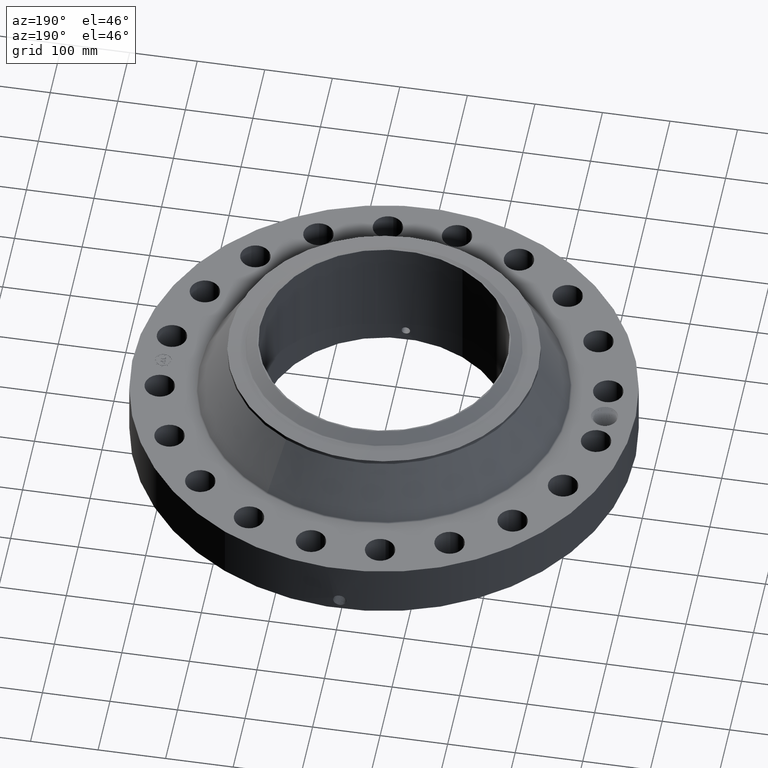
[diagram: clean part render]
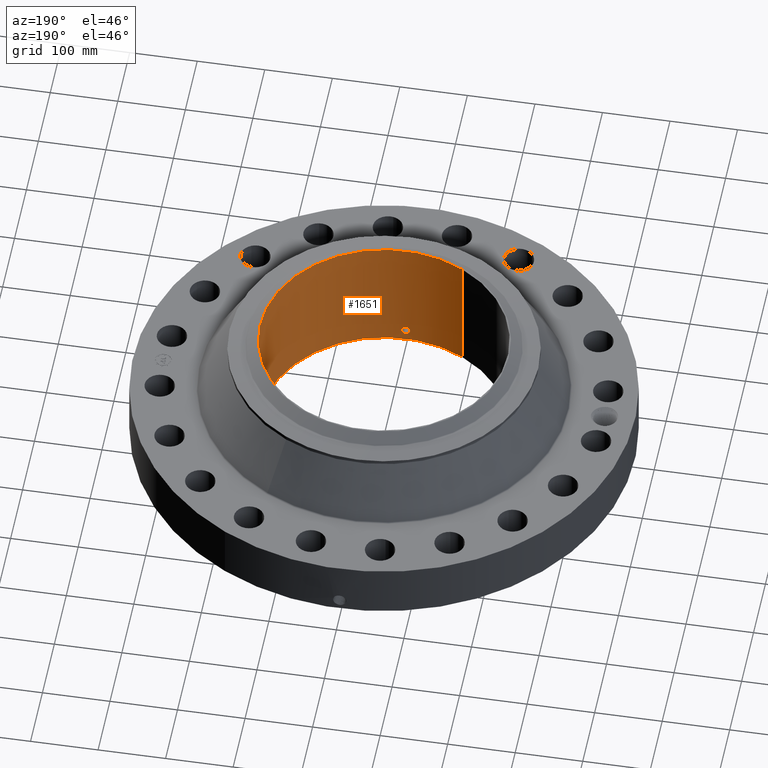
[diagram: same view with one face highlighted and labeled with its STEP entity id]
A machine part, auxiliary view. The second image highlights one B-rep face of the part: STEP entity #1651.
In plain terms, the highlighted cylindrical surface (partial cylindrical patch) has radius 183.363 mm, axis along (0, 0, -1).
Its self-contained STEP definition (entity closure, byte-faithful):
#254=AXIS2_PLACEMENT_3D('Circle Axis2P3D',#252,#253,$) ;
#1582=AXIS2_PLACEMENT_3D('Cylinder Axis2P3D',#1579,#1580,#1581) ;
#1586=AXIS2_PLACEMENT_3D('Circle Axis2P3D',#1584,#1585,$) ;
#252=CARTESIAN_POINT('Axis2P3D Location',(0.,0.,0.250000000001)) ;
#256=CARTESIAN_POINT('Vertex',(3.4609729632,6.33526851431,0.250000000001)) ;
#258=CARTESIAN_POINT('Vertex',(-3.4609729632,-6.33526851431,0.250000000001)) ;
#1579=CARTESIAN_POINT('Axis2P3D Location',(0.,0.,3.87500000002)) ;
#1584=CARTESIAN_POINT('Axis2P3D Location',(0.,0.,7.50000000003)) ;
#1588=CARTESIAN_POINT('Vertex',(3.4609729632,6.33526851431,7.50000000003)) ;
#1590=CARTESIAN_POINT('Vertex',(-3.4609729632,-6.33526851431,7.50000000003)) ;
#1593=CARTESIAN_POINT('Line Origine',(3.4609729632,6.33526851431,3.87500000002)) ;
#1598=CARTESIAN_POINT('Line Origine',(-3.4609729632,-6.33526851431,3.87500000002)) ;
#1610=CARTESIAN_POINT('Control Point',(0.219395640473,-7.21566535763,0.820143615352)) ;
#1611=CARTESIAN_POINT('Control Point',(0.194443477235,-7.21642403969,0.774468986914)) ;
#1612=CARTESIAN_POINT('Control Point',(0.157607221232,-7.21743610595,0.735290962745)) ;
#1613=CARTESIAN_POINT('Control Point',(0.111113039961,-7.21842029589,0.706759020171)) ;
#1614=CARTESIAN_POINT('Control Point',(0.0336798237529,-7.2192033861,0.684118356673)) ;
#1615=CARTESIAN_POINT('Control Point',(-0.0446639367655,-7.21893285786,0.691942649391)) ;
#1616=CARTESIAN_POINT('Control Point',(-0.0702916783756,-7.21872283908,0.697953989176)) ;
#1617=CARTESIAN_POINT('Control Point',(-0.143945309823,-7.2177946796,0.725781435934)) ;
#1618=CARTESIAN_POINT('Control Point',(-0.203231231607,-7.21627949124,0.780487792198)) ;
#1619=CARTESIAN_POINT('Control Point',(-0.232199349652,-7.21528548081,0.826721001487)) ;
#1620=CARTESIAN_POINT('Control Point',(-0.255838754623,-7.21446805381,0.904870059907)) ;
#1621=CARTESIAN_POINT('Control Point',(-0.248285892278,-7.2147290081,0.984240488738)) ;
#1622=CARTESIAN_POINT('Control Point',(-0.242052041755,-7.21494752736,1.01080796279)) ;
#1623=CARTESIAN_POINT('Control Point',(-0.23231738769,-7.21527246594,1.03620328503)) ;
#1624=CARTESIAN_POINT('Control Point',(-0.219395640473,-7.21566535763,1.05985638466)) ;
#1625=CARTESIAN_POINT('Vertex',(0.219395640473,-7.21566535763,0.820143615352)) ;
#1627=CARTESIAN_POINT('Vertex',(-0.219395640473,-7.21566535763,1.05985638466)) ;
#1631=CARTESIAN_POINT('Control Point',(-0.219395640473,-7.21566535763,1.05985638466)) ;
#1632=CARTESIAN_POINT('Control Point',(-0.194443477235,-7.21642403969,1.10553101309)) ;
#1633=CARTESIAN_POINT('Control Point',(-0.157607221233,-7.21743610595,1.14470903726)) ;
#1634=CARTESIAN_POINT('Control Point',(-0.111113039962,-7.21842029589,1.17324097984)) ;
#1635=CARTESIAN_POINT('Control Point',(-0.0336798237584,-7.2192033861,1.19588164333)) ;
#1636=CARTESIAN_POINT('Control Point',(0.0446639367554,-7.21893285786,1.18805735062)) ;
#1637=CARTESIAN_POINT('Control Point',(0.0702916783794,-7.21872283908,1.18204601083)) ;
#1638=CARTESIAN_POINT('Control Point',(0.143945309847,-7.2177946796,1.15421856406)) ;
#1639=CARTESIAN_POINT('Control Point',(0.203231231645,-7.21627949124,1.09951220778)) ;
#1640=CARTESIAN_POINT('Control Point',(0.232199349635,-7.21528548081,1.05327899857)) ;
#1641=CARTESIAN_POINT('Control Point',(0.255838754635,-7.21446805381,0.975129940099)) ;
#1642=CARTESIAN_POINT('Control Point',(0.248285892273,-7.2147290081,0.895759511211)) ;
#1643=CARTESIAN_POINT('Control Point',(0.242052041778,-7.21494752736,0.869192037272)) ;
#1644=CARTESIAN_POINT('Control Point',(0.232317387705,-7.21527246594,0.843796715002)) ;
#1645=CARTESIAN_POINT('Control Point',(0.219395640473,-7.21566535763,0.820143615352)) ;
#253=DIRECTION('Axis2P3D Direction',(0.,0.,-0.0393700787402)) ;
#1580=DIRECTION('Axis2P3D Direction',(0.,0.,-0.0393700787402)) ;
#1581=DIRECTION('Axis2P3D XDirection',(-0.0188750212049,-0.0345504945626,0.)) ;
#1585=DIRECTION('Axis2P3D Direction',(0.,0.,-0.0393700787402)) ;
#1594=DIRECTION('Vector Direction',(0.,0.,-0.0393700787402)) ;
#1599=DIRECTION('Vector Direction',(0.,0.,-0.0393700787402)) ;
#1595=VECTOR('Line Direction',#1594,0.0393700787402) ;
#1600=VECTOR('Line Direction',#1599,0.0393700787402) ;
#1604=ORIENTED_EDGE('',*,*,#1592,.F.) ;
#1605=ORIENTED_EDGE('',*,*,#1597,.T.) ;
#1606=ORIENTED_EDGE('',*,*,#260,.T.) ;
#1607=ORIENTED_EDGE('',*,*,#1602,.F.) ;
#1648=ORIENTED_EDGE('',*,*,#1629,.F.) ;
#1649=ORIENTED_EDGE('',*,*,#1646,.F.) ;
#1650=FACE_BOUND('',#1647,.T.) ;
#1651=ADVANCED_FACE('PartBody',(#1608,#1650),#1583,.F.) ;
#1609=B_SPLINE_CURVE_WITH_KNOTS('',5,(#1610,#1611,#1612,#1613,#1614,#1615,#1616,#1617,#1618,#1619,#1620,#1621,#1622,#1623,#1624),.UNSPECIFIED.,.F.,.U.,(6,3,3,3,6),(0.,9.34871444161,14.0226848489,23.3727090763,28.214041816),.UNSPECIFIED.) ;
#1630=B_SPLINE_CURVE_WITH_KNOTS('',5,(#1631,#1632,#1633,#1634,#1635,#1636,#1637,#1638,#1639,#1640,#1641,#1642,#1643,#1644,#1645),.UNSPECIFIED.,.F.,.U.,(6,3,3,3,6),(0.,9.34871444141,14.0226848481,23.3727090801,28.2140418253),.UNSPECIFIED.) ;
#255=CIRCLE('generated circle',#254,7.21900000003) ;
#1587=CIRCLE('generated circle',#1586,7.21900000003) ;
#1583=CYLINDRICAL_SURFACE('generated cylinder',#1582,7.21900000003) ;
#260=EDGE_CURVE('',#257,#259,#255,.T.) ;
#1592=EDGE_CURVE('',#1589,#1591,#1587,.T.) ;
#1597=EDGE_CURVE('',#1589,#257,#1596,.T.) ;
#1602=EDGE_CURVE('',#1591,#259,#1601,.T.) ;
#1629=EDGE_CURVE('',#1626,#1628,#1609,.T.) ;
#1646=EDGE_CURVE('',#1628,#1626,#1630,.T.) ;
#1603=EDGE_LOOP('',(#1604,#1605,#1606,#1607)) ;
#1647=EDGE_LOOP('',(#1648,#1649)) ;
#1608=FACE_OUTER_BOUND('',#1603,.T.) ;
#1596=LINE('Line',#1593,#1595) ;
#1601=LINE('Line',#1598,#1600) ;
#257=VERTEX_POINT('',#256) ;
#259=VERTEX_POINT('',#258) ;
#1589=VERTEX_POINT('',#1588) ;
#1591=VERTEX_POINT('',#1590) ;
#1626=VERTEX_POINT('',#1625) ;
#1628=VERTEX_POINT('',#1627) ;